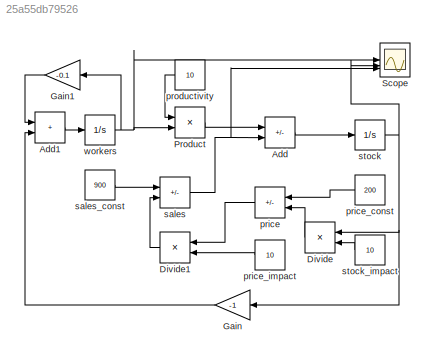
MODEL slx_25a55db79526
KIND model
CONFIG AbsTol = auto
CONFIG EnableMultiTasking = off
CONFIG FixedStep = 0.001
CONFIG MaxStep = auto
CONFIG MinStep = auto
CONFIG RelTol = 1e-3
CONFIG SampleTimeConstraint = Unconstrained
CONFIG SolverName = ode4
CONFIG StartTime = 0.0
CONFIG StopTime = 100
BLOCK [Sum] Add
  IconShape = rectangular
  Inputs = +-
BLOCK [Sum] Add1
  IconShape = rectangular
BLOCK [Product] Divide
  Inputs = */
BLOCK [Product] Divide1
  Inputs = */
BLOCK [Gain] Gain
  Gain = -1
BLOCK [Gain] Gain1
  Gain = -0.1
BLOCK [Product] Product
BLOCK [Scope] Scope
  Floating = off
  NumInputPorts = 3
  ScopeSpecificationString = Simulink.scopes.TimeScopeBlockCfg('CurrentConfiguration', extmgr.ConfigurationSet(extmgr.Configuration('Core','General UI',true),extmgr.Configuration('Core','Source UI',true),extmgr.Configuration('Sources','WiredSimulink',true),extmgr.Configuration('Visuals','Time Domain',true,'SerializedDisplays',{struct('MinYLimReal','-294.0217','MaxYLimReal','1011.97575','YLabelReal','','MinYLimMag',' 0.00000',...<+1406ch>
BLOCK [Sum] price
  IconShape = rectangular
  Inputs = +-
BLOCK [Constant] price_const
  Value = 200
BLOCK [Constant] price_impact
  Value = 10
BLOCK [Constant] productivity
  Value = 10
BLOCK [Sum] sales
  IconShape = rectangular
  Inputs = +-
BLOCK [Constant] sales_const
  Value = 900
BLOCK [Integrator] stock
  InitialCondition = 100
BLOCK [Constant] stock_impact
  Value = 10
BLOCK [Integrator] workers
  InitialCondition = 50
LINE Add1:1 -> workers:1
LINE Add:1 -> stock:1
LINE Divide1:1 -> sales:2
LINE Divide:1 -> price:2
LINE Gain1:1 -> Add1:1
LINE Gain:1 -> Add1:2
LINE Product:1 -> Add:1
LINE price:1 -> Divide1:1
LINE price_const:1 -> price:1
LINE price_impact:1 -> Divide1:2
LINE productivity:1 -> Product:1
NET sales:1 -> Add:2, Scope:3
LINE sales_const:1 -> sales:1
NET stock:1 -> Divide:1, Gain:1, Scope:2
LINE stock_impact:1 -> Divide:2
NET workers:1 -> Gain1:1, Product:2, Scope:1
note: NET lines group one-source signal fan-out (src -> all destinations, sorted); 1:1 wires keep LINE
